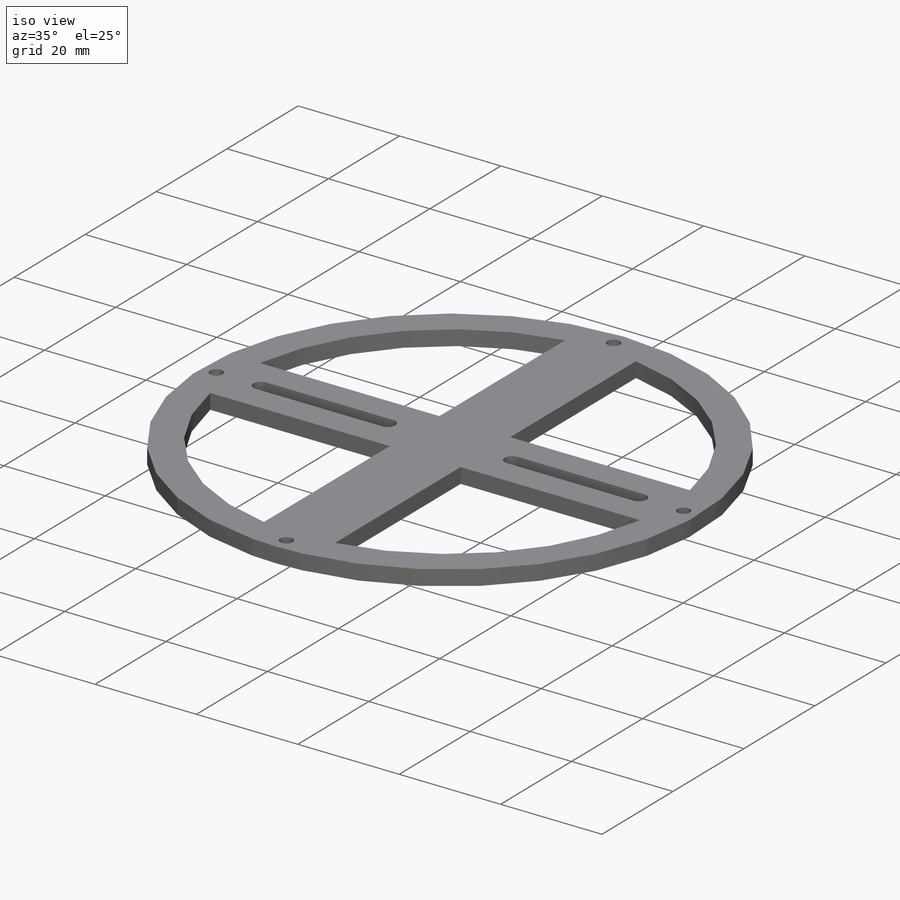
[diagram: iso view]
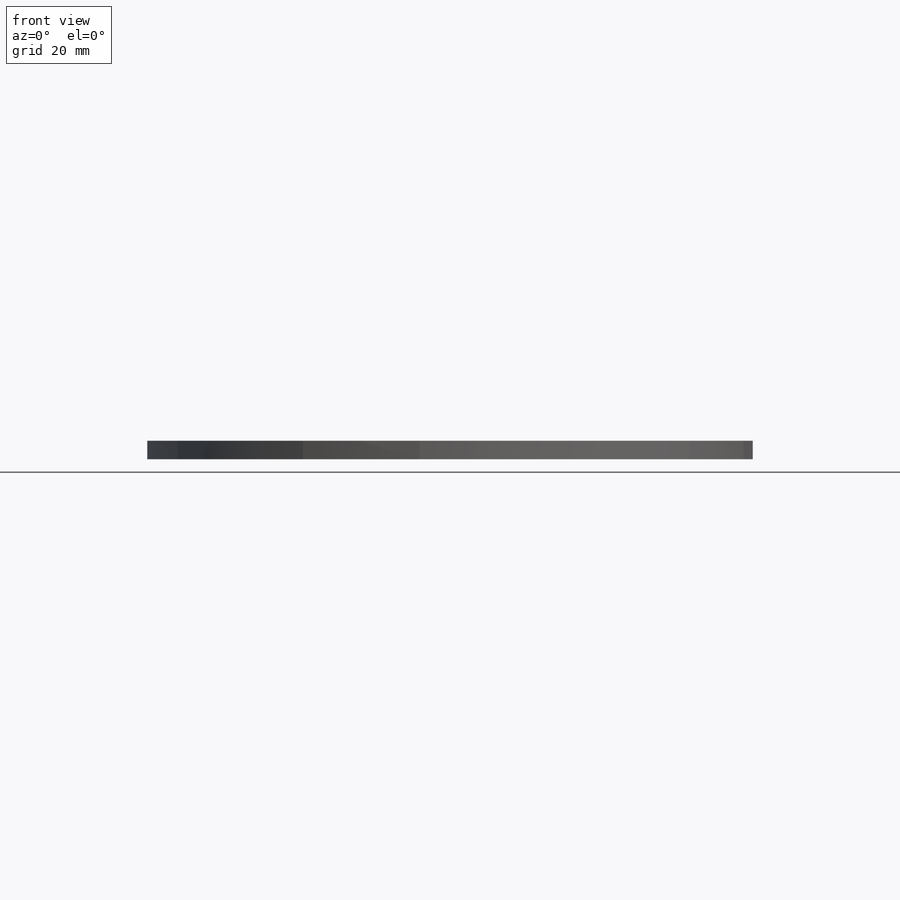
[diagram: front view]
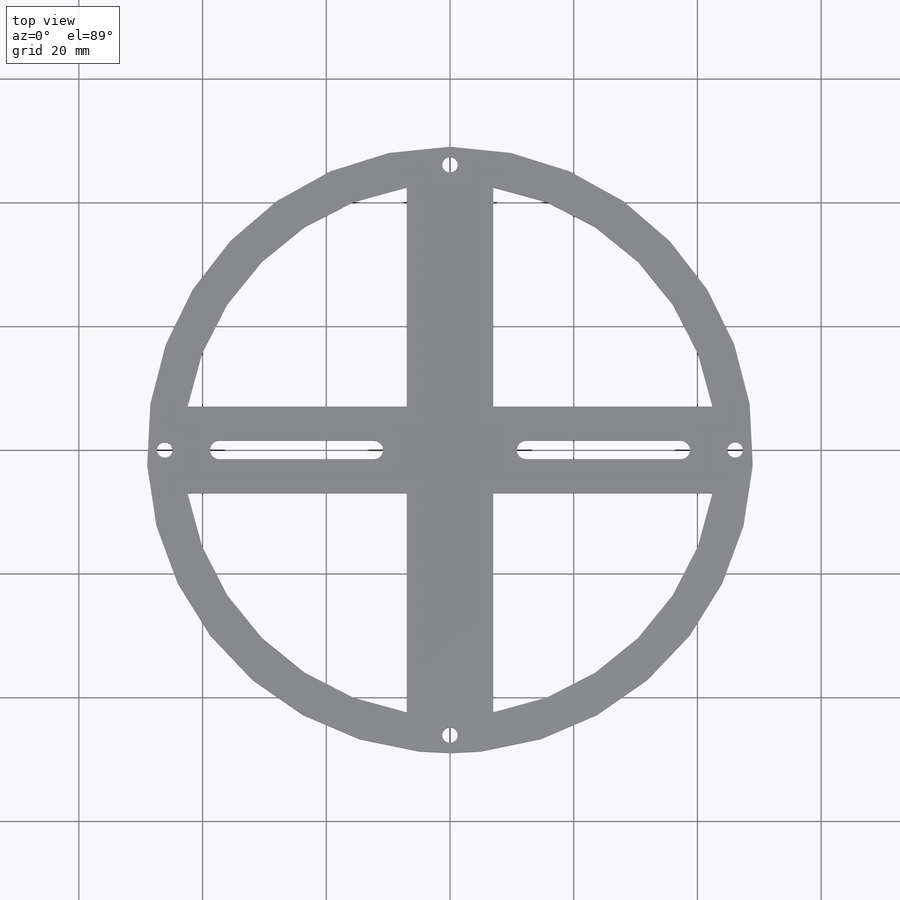
[diagram: top view]
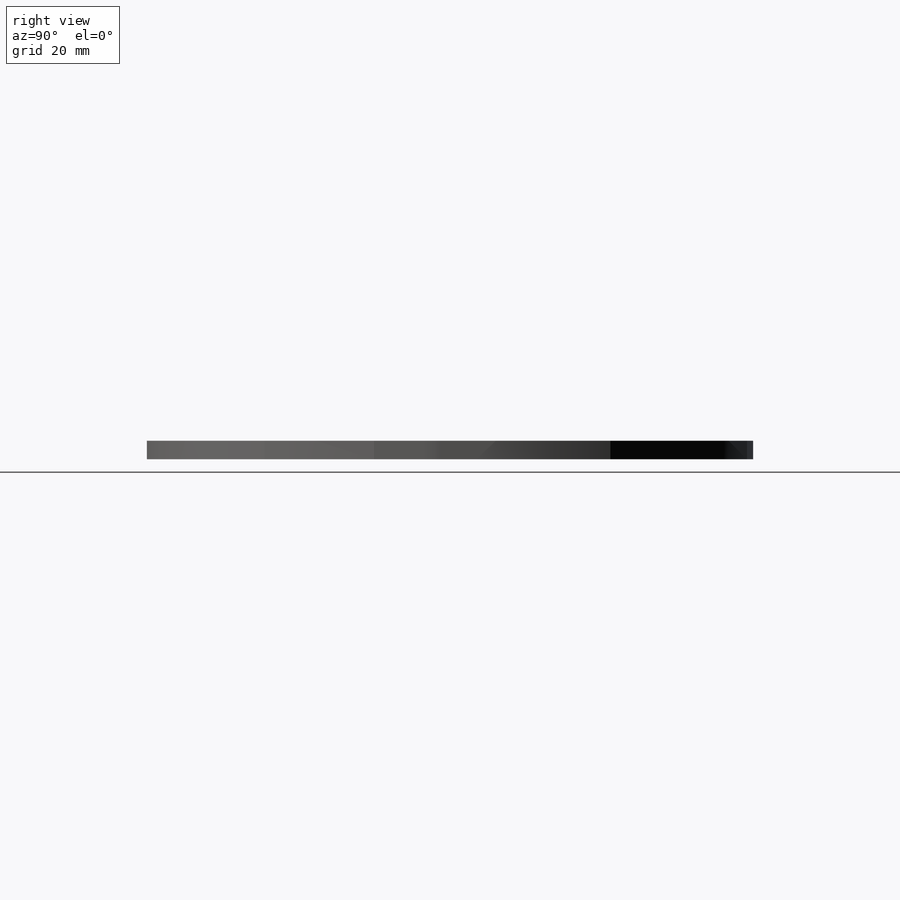
[diagram: right view]
SOLIDWORKS PART (.sldprt)
format: sldprt  version: not decoded by parser v0  size: 273,920 bytes
history: native  units: mm
features: sketch x5, plane x3, cut_extrude x3, pattern_circular x3, material x1, extrude x1 (+10 scaffold rows collapsed)
feature tree (26):
  scaffold x10  (default folders/planes/origin — collapsed)
  material  "材质 <未指定>"
  plane  "前视"
  plane  "上视"
  plane  "右视"
  sketch  "草图1"  dims[D1=98.0mm]
  extrude  "凸台-拉伸1"  Depth=3mm
  sketch  "草图2"  dims[c1.D1=~1.725439mm c1.D2=2.5mm c2.D1=46.1mm]
  sketch  "草图5"  dims[D1=7.0mm D2=7.0mm]
  cut_extrude  "切除-拉伸3"  [1 undecoded]
  sketch  "草图6"  dims[c1.D1=~1.138339mm c1.D3=1.55mm c2.D1=12.3mm c2.D2=25.0mm]
  cut_extrude  "切除-拉伸4"  [1 undecoded]
  pattern_circular  "阵列(圆周)4"  Count=2 Angle=360deg
  cut_extrude  "切除-拉伸5"  [1 undecoded]
  pattern_circular  "阵列(圆周)5"  Count=4 Angle=360deg
  sketch  "草图7"  dims[D1=24.8mm]
  pattern_circular  "阵列(圆周)6"  Count=4 Angle=360deg
decode coverage: 9 of 12 modeling features carry decoded parameters
note: ~ marks probable driven/reference dimensions
note: 3 parameter values undecoded
summary: no parameter record found for 3 features
note: suppression state not decoded; provenance and decode notes live in map.json
